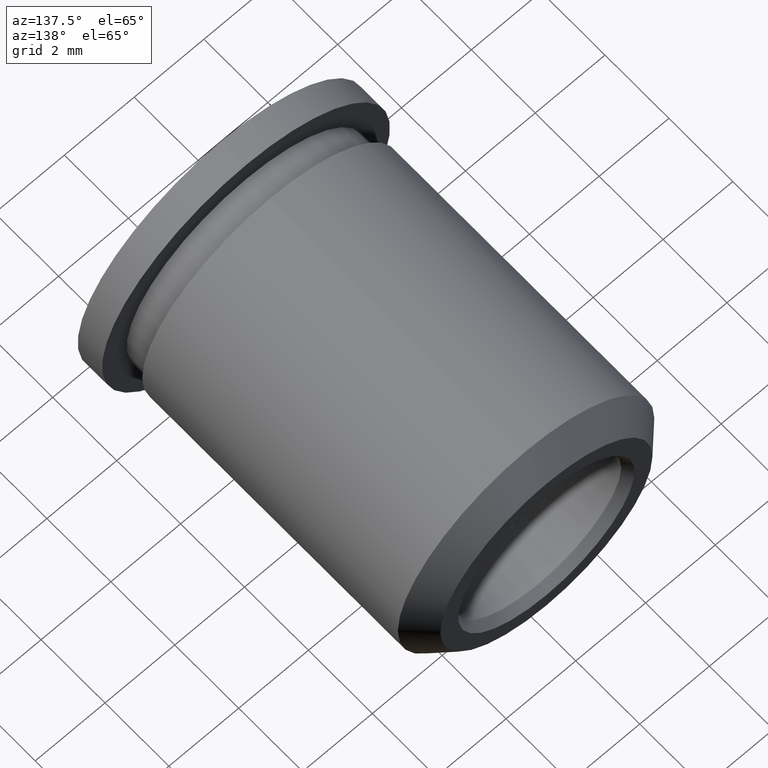
[diagram: clean part render]
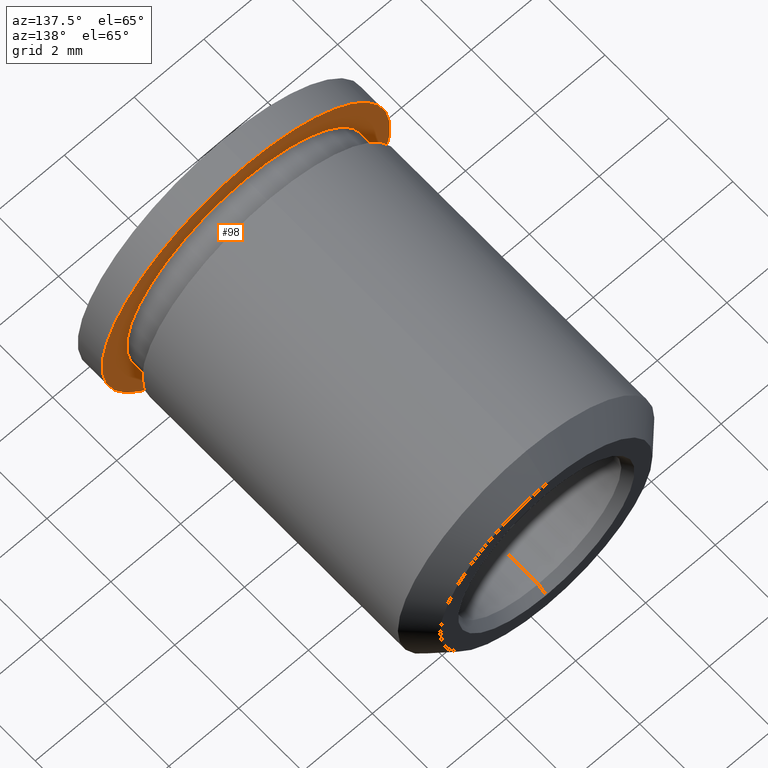
[diagram: same view with one face highlighted and labeled with its STEP entity id]
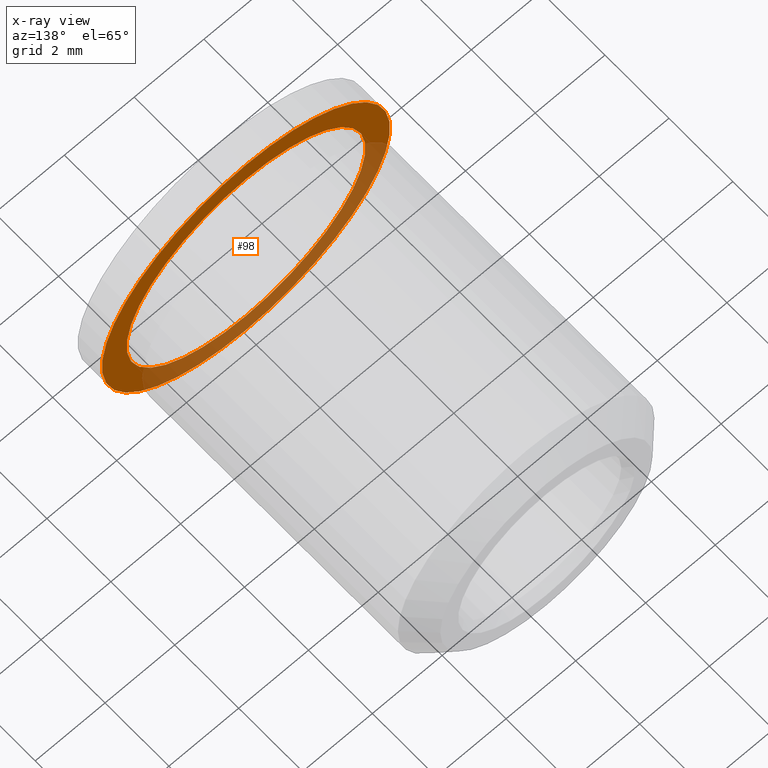
[diagram: x-ray of the same camera — body ghosted, the highlighted face saturated]
A machine part, auxiliary view. The second image highlights one B-rep face of the part: STEP entity #98.
The next image is the same camera in x-ray: the body ghosted, the highlighted face saturated — about 39% of this face is hidden behind the body in this view.
In plain terms, the highlighted planar face has unit normal (0, 1, 0).
Its self-contained STEP definition (entity closure, byte-faithful):
#6 = EDGE_CURVE ( 'NONE', #117, #120, #211, .T. ) ;
#7 = ORIENTED_EDGE ( 'NONE', *, *, #6, .F. ) ;
#62 = EDGE_CURVE ( 'NONE', #63, #124, #551, .T. ) ;
#63 = VERTEX_POINT ( 'NONE', #538 ) ;
#69 = ORIENTED_EDGE ( 'NONE', *, *, #84, .T. ) ;
#70 = EDGE_LOOP ( 'NONE', ( #71, #7 ) ) ;
#71 = ORIENTED_EDGE ( 'NONE', *, *, #116, .F. ) ;
#84 = EDGE_CURVE ( 'NONE', #124, #63, #449, .T. ) ;
#98 = ADVANCED_FACE ( 'NONE', ( #474, #473 ), #424, .T. ) ;
#99 = EDGE_LOOP ( 'NONE', ( #121, #69 ) ) ;
#116 = EDGE_CURVE ( 'NONE', #120, #117, #525, .T. ) ;
#117 = VERTEX_POINT ( 'NONE', #461 ) ;
#120 = VERTEX_POINT ( 'NONE', #605 ) ;
#121 = ORIENTED_EDGE ( 'NONE', *, *, #62, .T. ) ;
#124 = VERTEX_POINT ( 'NONE', #593 ) ;
#188 = DIRECTION ( 'NONE',  ( 0.0000000000000000000, 0.0000000000000000000, 1.000000000000000000 ) ) ;
#208 = DIRECTION ( 'NONE',  ( 0.0000000000000000000, 1.000000000000000000, 0.0000000000000000000 ) ) ;
#209 = CARTESIAN_POINT ( 'NONE',  ( 1.508592567273786700E-015, -4.317999999999999600, 0.0000000000000000000 ) ) ;
#210 = AXIS2_PLACEMENT_3D ( 'NONE', #209, #208, #188 ) ;
#211 = CIRCLE ( 'NONE', #210, 3.422649999999999500 ) ;
#411 = DIRECTION ( 'NONE',  ( 0.0000000000000000000, 0.0000000000000000000, 1.000000000000000000 ) ) ;
#412 = DIRECTION ( 'NONE',  ( 0.0000000000000000000, 1.000000000000000000, 0.0000000000000000000 ) ) ;
#413 = AXIS2_PLACEMENT_3D ( 'NONE', #448, #412, #411 ) ;
#414 = AXIS2_PLACEMENT_3D ( 'NONE', #555, #537, #443 ) ;
#420 = DIRECTION ( 'NONE',  ( 0.0000000000000000000, 0.0000000000000000000, 1.000000000000000000 ) ) ;
#421 = DIRECTION ( 'NONE',  ( 0.0000000000000000000, 1.000000000000000000, 0.0000000000000000000 ) ) ;
#422 = CARTESIAN_POINT ( 'NONE',  ( 2.063750000000002000, -4.318000000000000500, 0.0000000000000000000 ) ) ;
#423 = AXIS2_PLACEMENT_3D ( 'NONE', #422, #421, #420 ) ;
#424 = PLANE ( 'NONE',  #423 ) ;
#443 = DIRECTION ( 'NONE',  ( 0.0000000000000000000, 0.0000000000000000000, 1.000000000000000000 ) ) ;
#448 = CARTESIAN_POINT ( 'NONE',  ( 1.508592567273786700E-015, -4.317999999999999600, 0.0000000000000000000 ) ) ;
#449 = CIRCLE ( 'NONE', #413, 4.127499999999999500 ) ;
#461 = CARTESIAN_POINT ( 'NONE',  ( 1.927746303983955100E-015, -4.317999999999999600, -3.422649999999999500 ) ) ;
#462 = DIRECTION ( 'NONE',  ( 0.0000000000000000000, 0.0000000000000000000, 1.000000000000000000 ) ) ;
#463 = DIRECTION ( 'NONE',  ( 0.0000000000000000000, 1.000000000000000000, 0.0000000000000000000 ) ) ;
#464 = CARTESIAN_POINT ( 'NONE',  ( 1.508592567273786700E-015, -4.317999999999999600, 0.0000000000000000000 ) ) ;
#465 = AXIS2_PLACEMENT_3D ( 'NONE', #464, #463, #462 ) ;
#473 = FACE_BOUND ( 'NONE', #70, .T. ) ;
#474 = FACE_OUTER_BOUND ( 'NONE', #99, .T. ) ;
#525 = CIRCLE ( 'NONE', #465, 3.422649999999999500 ) ;
#537 = DIRECTION ( 'NONE',  ( 0.0000000000000000000, 1.000000000000000000, 0.0000000000000000000 ) ) ;
#538 = CARTESIAN_POINT ( 'NONE',  ( 1.508592567273786700E-015, -4.317999999999999600, 4.127499999999999500 ) ) ;
#551 = CIRCLE ( 'NONE', #414, 4.127499999999999500 ) ;
#555 = CARTESIAN_POINT ( 'NONE',  ( 1.508592567273786700E-015, -4.317999999999999600, 0.0000000000000000000 ) ) ;
#593 = CARTESIAN_POINT ( 'NONE',  ( 2.014065533621856500E-015, -4.317999999999999600, -4.127499999999999500 ) ) ;
#605 = CARTESIAN_POINT ( 'NONE',  ( 1.508592567273786700E-015, -4.317999999999999600, 3.422649999999999500 ) ) ;